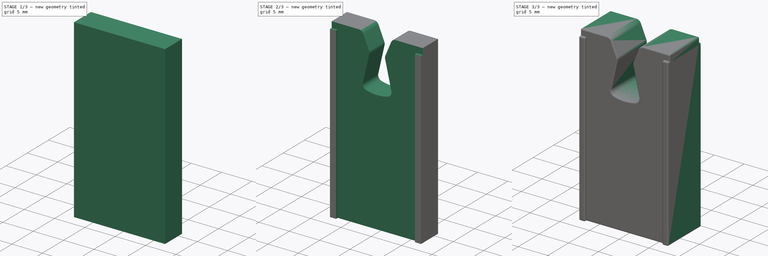
[diagram: build sequence overview — one tinted view per stage of 3, left to right]
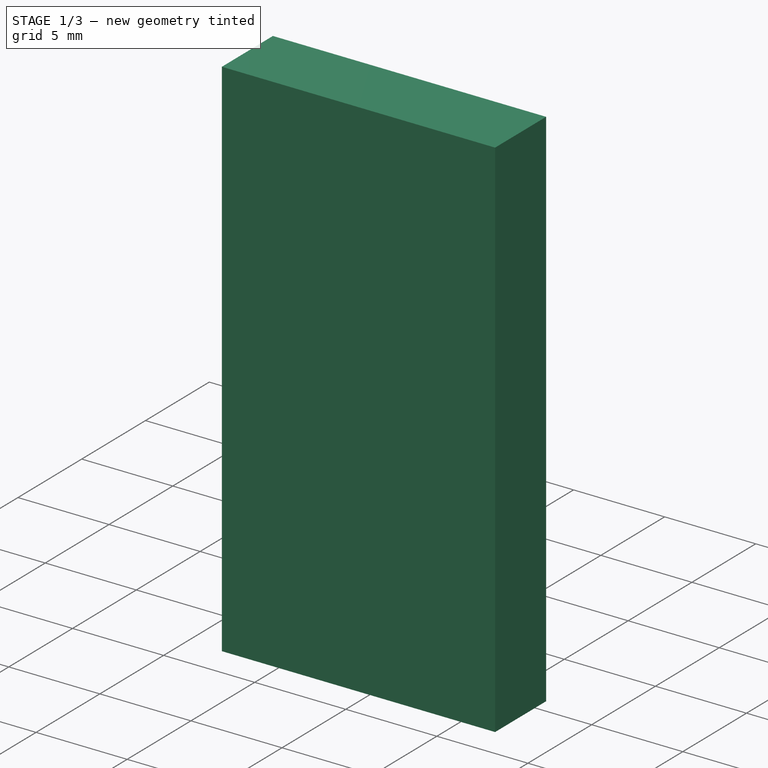
[diagram: stage 1 of 3 — iso view after this stage's code; geometry added in this stage tinted green]
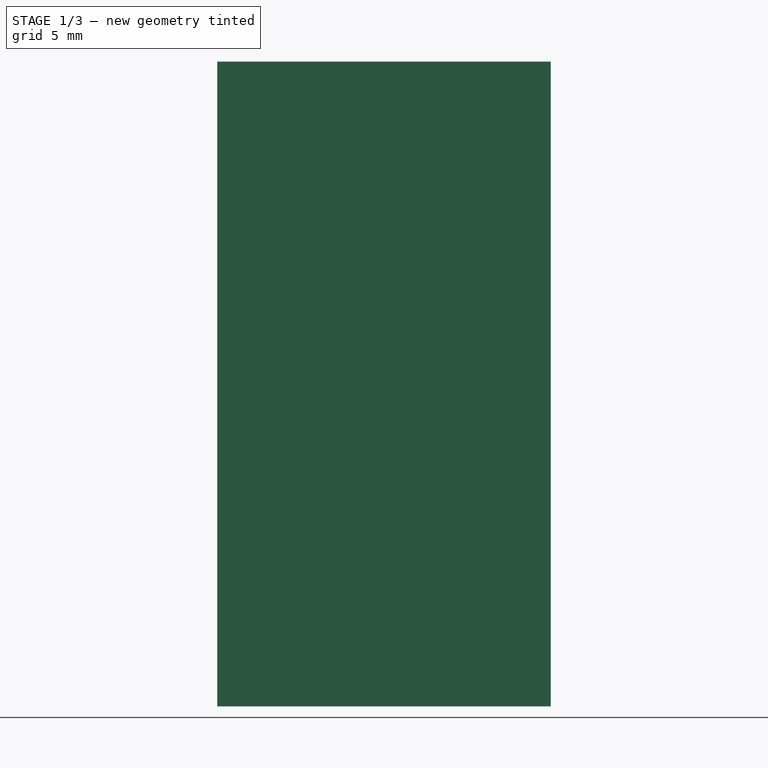
[diagram: stage 1 of 3 — front view after this stage's code; geometry added in this stage tinted green]
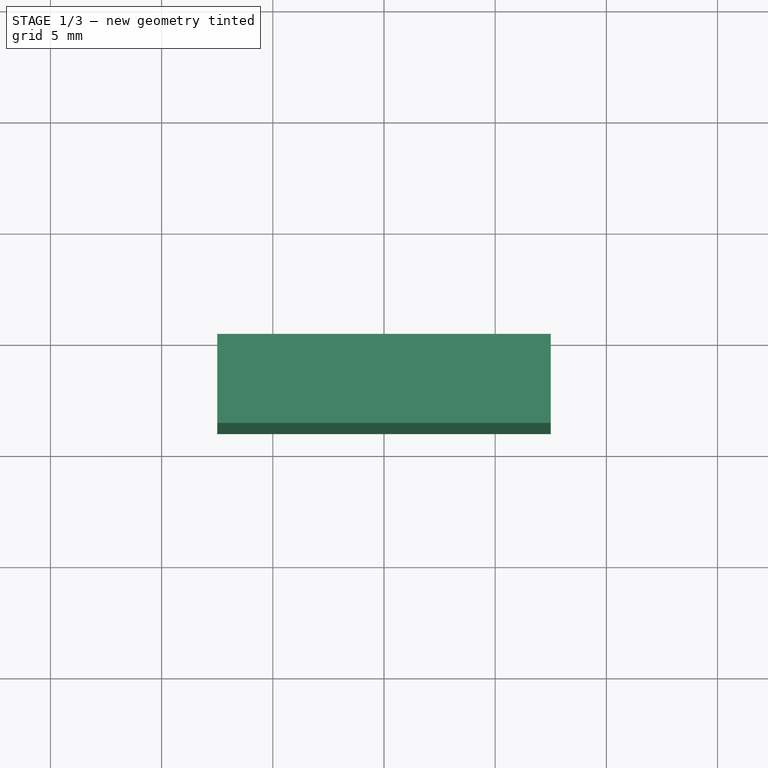
[diagram: stage 1 of 3 — top view after this stage's code; geometry added in this stage tinted green]
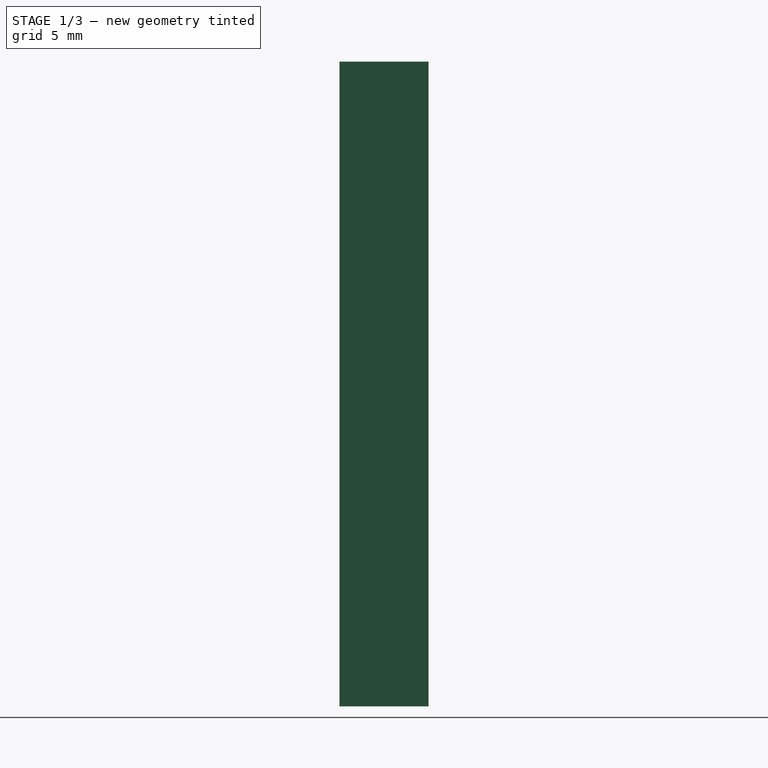
[diagram: stage 1 of 3 — right view after this stage's code; geometry added in this stage tinted green]
FCSTD DOCUMENT  (FreeCAD 1.0RUnknown)
Label: Marimba Part
License: All rights reserved
LicenseURL: https://en.wikipedia.org/wiki/All_rights_reserved
objects: Sketcher::SketchObject×4, PartDesign::Pocket×3, PartDesign::Fillet×2, PartDesign::Pad×1, PartDesign::Mirrored×1, PartDesign::Body×1
note: 29 computed .brp shape members not serialized (recipe doc carries the construction recipe); baked Part::Feature solids carry a one-line shape summary decoded from their .brp

FEATURE [Sketcher::SketchObject] Sketch
  ArcFitTolerance = 1e-06
  AttachmentSupport = -> [XZ_Plane]
  FullyConstrained = true
  MakeInternals = false
  MapMode = 5
  Placement = pos=(0,0,0) rot=(1,0,0;1.5708rad)
  sketch-geometry (6):
    g0: LineSegment StartX=-7.5 StartY=29 StartZ=0 EndX=-7.5 EndY=0 EndZ=0
    g1: LineSegment StartX=-7.5 StartY=0 StartZ=0 EndX=0 EndY=0 EndZ=0
    g2: LineSegment StartX=0 StartY=29 StartZ=0 EndX=-7.5 EndY=29 EndZ=0
    g3: LineSegment StartX=0 StartY=0 StartZ=0 EndX=7.5 EndY=0 EndZ=0
    g4: LineSegment StartX=7.5 StartY=0 StartZ=0 EndX=7.5 EndY=29 EndZ=0
    g5: LineSegment StartX=7.5 StartY=29 StartZ=0 EndX=0 EndY=29 EndZ=0
  constraints (17):
    c: Coincident(g0,g1)
    c: Coincident(g2,g0)
    c: Vertical(g0)
    c: Horizontal(g1)
    c: Horizontal(g2)
    c: Coincident(g3,g4)
    c: Coincident(g4,g5)
    c: Vertical(g4)
    c: Horizontal(g3)
    c: Horizontal(g5)
    c: Coincident(g2,g5)
    c: Coincident(g1,g3)
    c: PointOnObject(g2,g-2)
    c: DistanceY(g4,g4) = 29
    c: Equal(g1,g3)
    c: DistanceX(g3,g3) = 7.5
    c: Coincident(g1,g-1)
FEATURE [PartDesign::Pad] Pad
  Direction = (0,-1,2e-16)
  Length = 4
  Length2 = 10
  Placement = pos=(0,0,0) rot=(1,0,0;1.5708rad)
  Profile = -> Sketch
  ReferenceAxis = -> Sketch [N_Axis]
  Refine = true
  Suppressed = false
  Type = 0
FEATURE [Sketcher::SketchObject] Sketch001
  ArcFitTolerance = 1e-06
  AttachmentSupport = -> [Pad]
  ExternalGeometry = -> [Pad]
  FullyConstrained = true
  MakeInternals = false
  MapMode = 5
  Placement = pos=(0,0,0) rot=(1,0,0;3.14159rad)
  sketch-geometry (1):
    g0: Circle CenterX=0 CenterY=0 CenterZ=0 NormalX=0 NormalY=0 NormalZ=1 AngleXU=0 Radius=2.5
  constraints (2):
    c: Coincident(g0,g-1)
    c: Diameter(g0) = 5
FEATURE [PartDesign::Pocket] Pocket
  BaseFeature = -> Pad
  Direction = (0,0,1)
  Length = 19
  Length2 = 5
  Placement = pos=(0,0,0) rot=(1,0,0;1.5708rad)
  Profile = -> Sketch001
  ReferenceAxis = -> Sketch001 [N_Axis]
  Refine = true
  Suppressed = false
  Type = 0
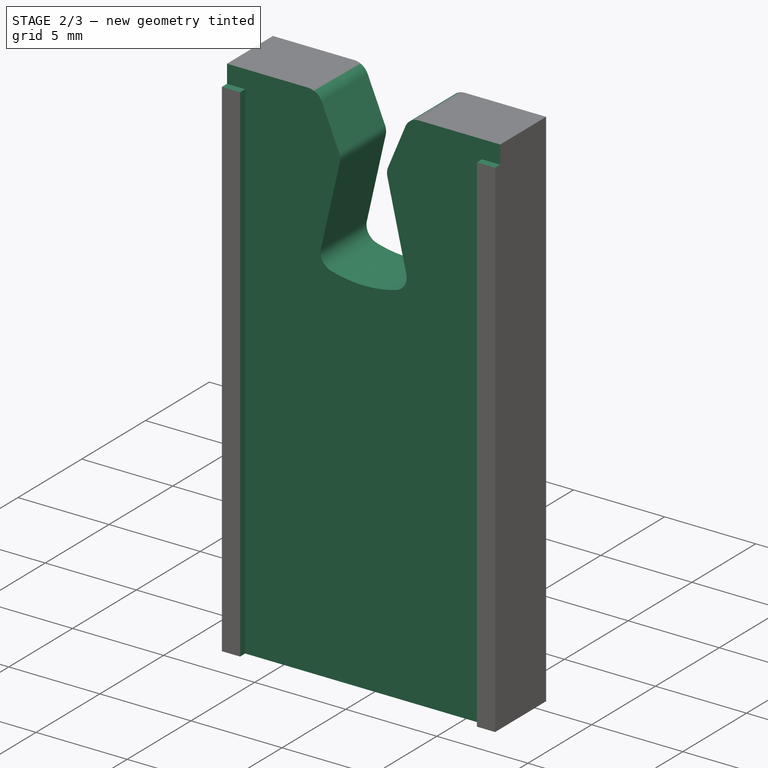
[diagram: stage 2 of 3 — iso view after this stage's code; geometry added in this stage tinted green]
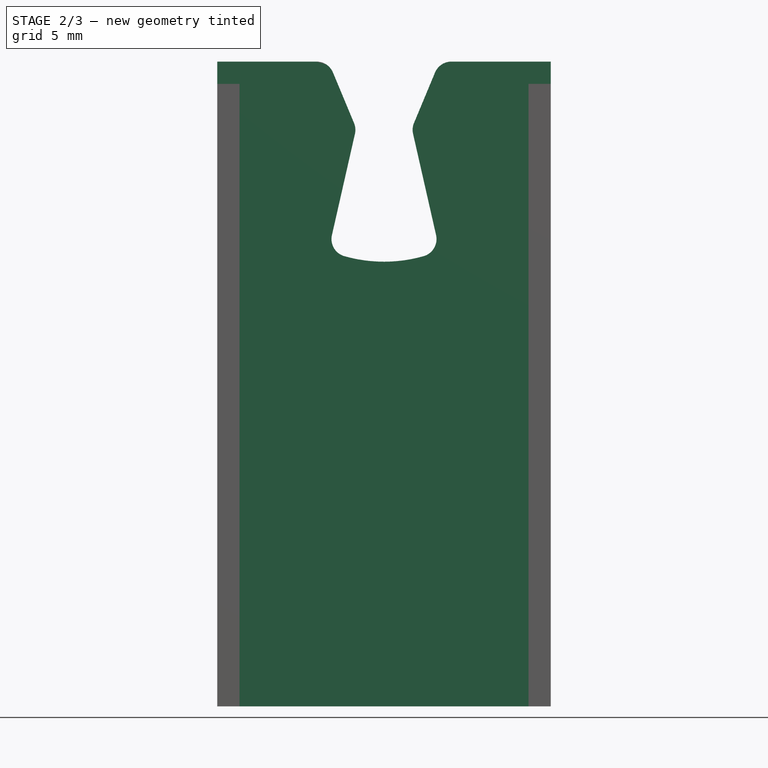
[diagram: stage 2 of 3 — front view after this stage's code; geometry added in this stage tinted green]
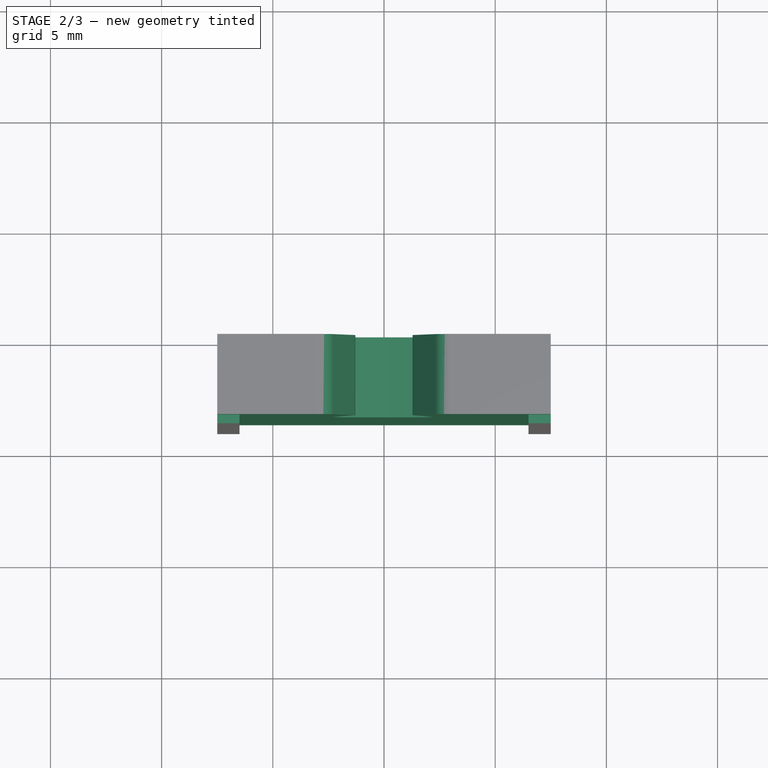
[diagram: stage 2 of 3 — top view after this stage's code; geometry added in this stage tinted green]
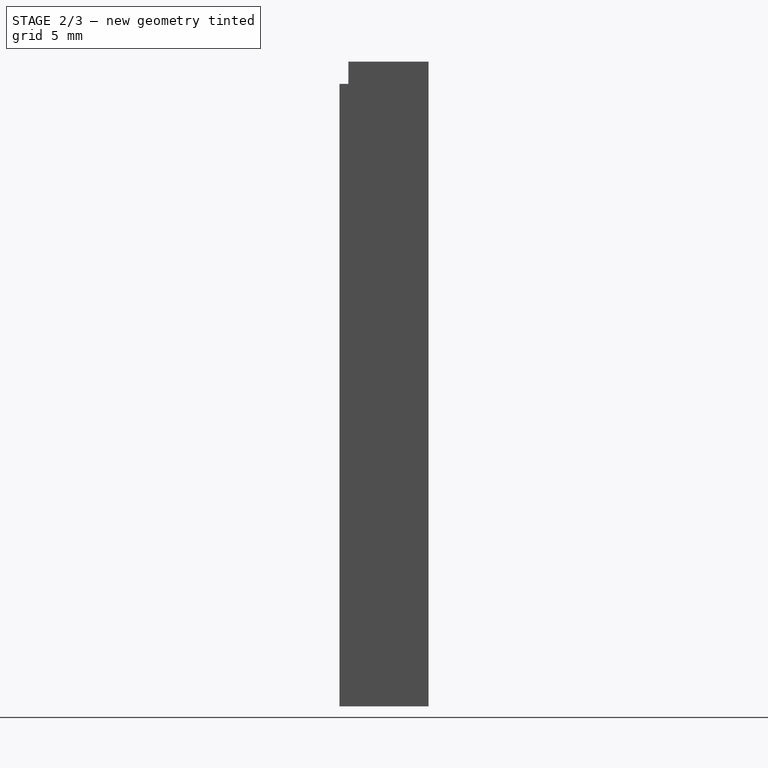
[diagram: stage 2 of 3 — right view after this stage's code; geometry added in this stage tinted green]
FEATURE [Sketcher::SketchObject] Sketch002
  ArcFitTolerance = 1e-06
  AttachmentSupport = -> [Pocket]
  ExternalGeometry = -> [Pocket]
  FullyConstrained = true
  MakeInternals = false
  MapMode = 5
  Placement = pos=(0,-4,9e-16) rot=(1,0,0;1.5708rad)
  sketch-geometry (18):
    g0: LineSegment [constr] StartX=-7.5 StartY=20 StartZ=0 EndX=-2.5 EndY=20 EndZ=0
    g1: LineSegment [constr] StartX=2.5 StartY=20 StartZ=0 EndX=7.5 EndY=20 EndZ=0
    g2: LineSegment [constr] StartX=-2.5 StartY=20 StartZ=0 EndX=9e-16 EndY=20 EndZ=0
    g3: LineSegment [constr] StartX=9e-16 StartY=20 StartZ=0 EndX=2.5 EndY=20 EndZ=0
    g4: LineSegment [constr] StartX=-2.5 StartY=20 StartZ=0 EndX=-2.5 EndY=29 EndZ=0
    g5: LineSegment [constr] StartX=2.5 StartY=20 StartZ=0 EndX=2.5 EndY=29 EndZ=0
    g6: LineSegment StartX=-2.5 StartY=20.5 StartZ=0 EndX=-1.25 EndY=26 EndZ=0
    g7: LineSegment StartX=2.5 StartY=20.5 StartZ=0 EndX=1.25 EndY=26 EndZ=0
    g8: LineSegment StartX=2.5 StartY=29 StartZ=0 EndX=1.25 EndY=26 EndZ=0
    g9: LineSegment [constr] StartX=-1.25 StartY=26 StartZ=0 EndX=0 EndY=26 EndZ=0
    g10: LineSegment [constr] StartX=0 StartY=26 StartZ=0 EndX=1.25 EndY=26 EndZ=0
    g11: LineSegment [constr] StartX=-1.25 StartY=26 StartZ=0 EndX=-2.5 EndY=26 EndZ=0
    g12: LineSegment [constr] StartX=-2.5 StartY=20.5 StartZ=0 EndX=0 EndY=20.5 EndZ=0
    g13: LineSegment [constr] StartX=2.5 StartY=20.5 StartZ=0 EndX=0 EndY=20.5 EndZ=0
    g14: ArcOfCircle CenterX=2e-15 CenterY=26.5 CenterZ=0 NormalX=0 NormalY=0 NormalZ=1 AngleXU=0 Radius=6.5 StartAngle=4.71239 EndAngle=5.10718
    g15: ArcOfCircle CenterX=2e-15 CenterY=26.5 CenterZ=0 NormalX=0 NormalY=0 NormalZ=1 AngleXU=0 Radius=6.5 StartAngle=4.3176 EndAngle=4.71239
    g16: LineSegment StartX=-1.25 StartY=26 StartZ=0 EndX=-2.5 EndY=29 EndZ=0
    g17: LineSegment StartX=-2.5 StartY=29 StartZ=0 EndX=2.5 EndY=29 EndZ=0
  constraints (51):
    c: PointOnObject(g0,g-3)
    c: PointOnObject(g1,g-4)
    c: Perpendicular(g-3,g0)
    c: Distance(g-5,g0) = 9
    c: Equal(g0,g1)
    c: DistanceX(g0,g0) = 5
    c: PointOnObject(g2,g-2)
    c: Coincident(g3,g2)
    c: Coincident(g3,g1)
    c: Parallel(g3,g2)
    c: Perpendicular(g2,g-2)
    c: Perpendicular(g-4,g1)
    c: PointOnObject(g4,g-5)
    c: Coincident(g5,g1)
    c: PointOnObject(g5,g-5)
    c: Perpendicular(g-5,g4)
    c: Perpendicular(g-5,g5)
    c: Coincident(g8,g7)
    c: Coincident(g9,g6)
    c: PointOnObject(g9,g-2)
    c: Coincident(g10,g9)
    c: Coincident(g10,g7)
    c: Equal(g9,g10)
    c: Perpendicular(g-2,g9)
    c: Parallel(g10,g9)
    c: Coincident(g11,g6)
    c: PointOnObject(g11,g4)
    c: Equal(g11,g9)
    c: Perpendicular(g4,g11)
    c: PointOnObject(g6,g4)
    c: Coincident(g4,g0)
    c: Coincident(g2,g0)
    c: PointOnObject(g7,g5)
    c: Coincident(g12,g6)
    c: PointOnObject(g12,g-2)
    c: Coincident(g13,g7)
    c: Coincident(g13,g12)
    c: Parallel(g13,g12)
    c: Perpendicular(g-2,g12)
    c: Coincident(g15,g14)
    c: Coincident(g15,g6)
    c: Coincident(g15,g14)
    c: Distance(g-5,g11) = 3
    c: Coincident(g16,g6)
    c: Coincident(g16,g4)
    c: Coincident(g14,g7)
    c: Coincident(g2,g14)
    c: Distance(g2,g12) = 0.5
    c: Coincident(g8,g5)
    c: Coincident(g17,g4)
    c: Coincident(g17,g5)
FEATURE [PartDesign::Pocket] Pocket001
  BaseFeature = -> Pocket
  Direction = (0,1,-2e-16)
  Length = 15
  Length2 = 5
  Placement = pos=(0,0,0) rot=(1,0,0;1.5708rad)
  Profile = -> Sketch002
  ReferenceAxis = -> Sketch002 [N_Axis]
  Refine = true
  Suppressed = false
  Type = 0
FEATURE [Sketcher::SketchObject] Sketch005
  ArcFitTolerance = 1e-06
  AttachmentSupport = -> [Pocket001]
  ExternalGeometry = -> [Pocket001]
  FullyConstrained = true
  MakeInternals = false
  MapMode = 5
  Placement = pos=(0,-4,9e-16) rot=(1,0,0;1.5708rad)
  sketch-geometry (13):
    g0: LineSegment StartX=-6.5 StartY=28 StartZ=0 EndX=-6.5 EndY=0 EndZ=0
    g1: LineSegment StartX=-6.5 StartY=0 StartZ=0 EndX=0 EndY=0 EndZ=0
    g2: LineSegment StartX=-7.5 StartY=28 StartZ=0 EndX=-6.5 EndY=28 EndZ=0
    g3: LineSegment [constr] StartX=-6.5 StartY=28 StartZ=0 EndX=-6.5 EndY=29 EndZ=0
    g4: LineSegment StartX=-7.5 StartY=28 StartZ=0 EndX=-7.5 EndY=29 EndZ=0
    g5: LineSegment StartX=-7.5 StartY=29 StartZ=0 EndX=-6.5 EndY=29 EndZ=0
    g6: LineSegment StartX=6.5 StartY=28 StartZ=0 EndX=6.5 EndY=0 EndZ=0
    g7: LineSegment StartX=6.5 StartY=0 StartZ=0 EndX=0 EndY=0 EndZ=0
    g8: LineSegment StartX=7.5 StartY=28 StartZ=0 EndX=6.5 EndY=28 EndZ=0
    g9: LineSegment [constr] StartX=6.5 StartY=28 StartZ=0 EndX=6.5 EndY=29 EndZ=0
    g10: LineSegment StartX=7.5 StartY=28 StartZ=0 EndX=7.5 EndY=29 EndZ=0
    g11: LineSegment StartX=7.5 StartY=29 StartZ=0 EndX=6.5 EndY=29 EndZ=0
    g12: LineSegment StartX=-6.5 StartY=29 StartZ=0 EndX=6.5 EndY=29 EndZ=0
  constraints (36):
    c: Coincident(g0,g1)
    c: Vertical(g0)
    c: Horizontal(g1)
    c: PointOnObject(g1,g-2)
    c: PointOnObject(g1,g-1)
    c: Coincident(g2,g0)
    c: Perpendicular(g0,g2)
    c: Coincident(g3,g0)
    c: Coincident(g4,g2)
    c: Coincident(g5,g4)
    c: Coincident(g5,g3)
    c: Horizontal(g5)
    c: DistanceY(g3,g3) = 1
    c: PointOnObject(g2,g-3)
    c: Coincident(g4,g-3)
    c: DistanceX(g2,g2) = 1
    c: Perpendicular(g5,g3)
    c: Coincident(g6,g7)
    c: Vertical(g6)
    c: Horizontal(g7)
    c: Coincident(g8,g6)
    c: Coincident(g9,g6)
    c: Coincident(g10,g8)
    c: Coincident(g11,g10)
    c: Coincident(g11,g9)
    c: Horizontal(g11)
    c: Perpendicular(g11,g9)
    c: Coincident(g12,g3)
    c: Coincident(g12,g9)
    c: Horizontal(g12)
    c: Perpendicular(g9,g8)
    c: Perpendicular(g11,g10)
    c: Equal(g8,g2)
    c: Equal(g10,g4)
    c: PointOnObject(g8,g-4)
    c: Coincident(g7,g1)
FEATURE [PartDesign::Pocket] Pocket002
  BaseFeature = -> Pocket001
  Direction = (0,1,-2e-16)
  Length = 0.4
  Length2 = 5
  Placement = pos=(0,0,0) rot=(1,0,0;1.5708rad)
  Profile = -> Sketch005
  ReferenceAxis = -> Sketch005 [N_Axis]
  Refine = true
  Suppressed = false
  Type = 0
FEATURE [PartDesign::Fillet] Fillet
  Base = -> Pocket002 [Edge50,Edge49,Edge48,Edge47,Edge51,Edge42]
  BaseFeature = -> Pocket002
  Placement = pos=(0,0,0) rot=(1,0,0;1.5708rad)
  Radius = 0.8
  Refine = true
  SupportTransform = false
  Suppressed = false
  UseAllEdges = false
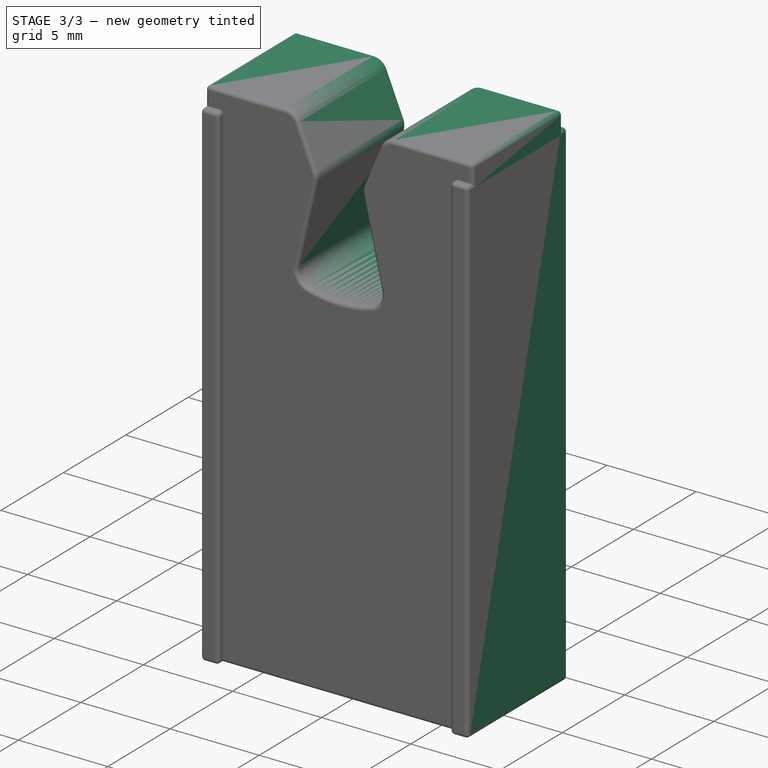
[diagram: stage 3 of 3 — iso view after this stage's code; geometry added in this stage tinted green]
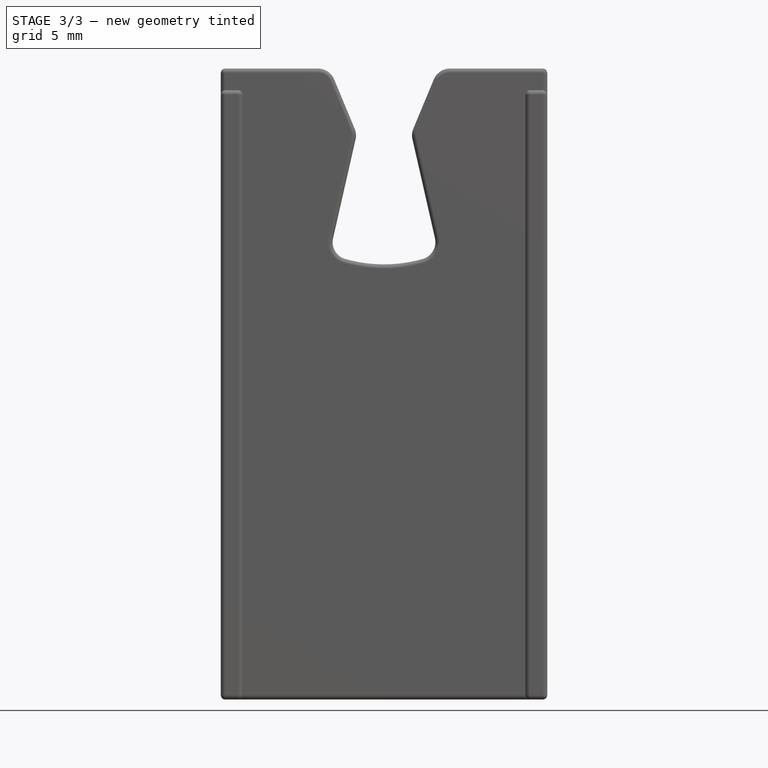
[diagram: stage 3 of 3 — front view after this stage's code; geometry added in this stage tinted green]
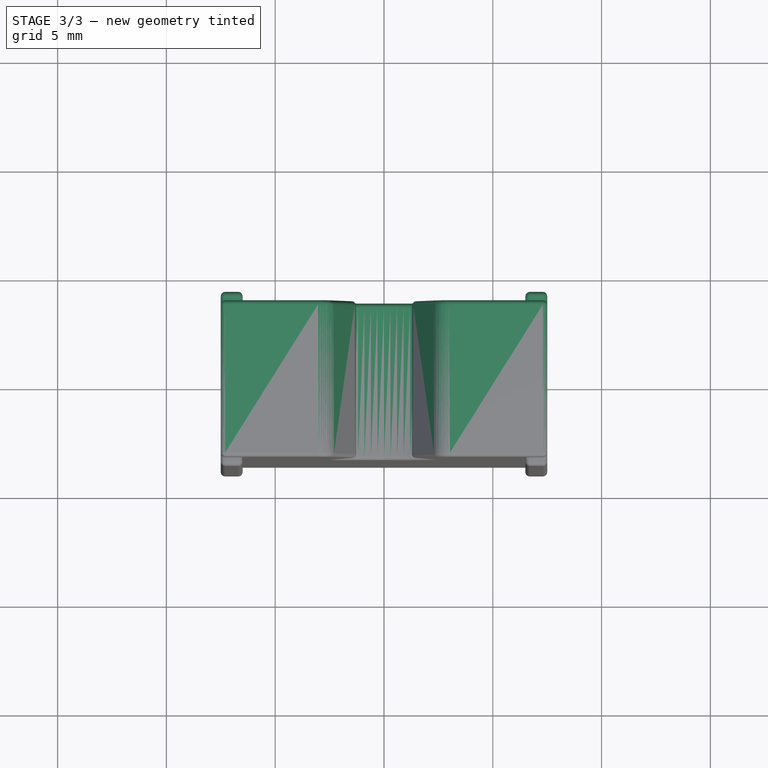
[diagram: stage 3 of 3 — top view after this stage's code; geometry added in this stage tinted green]
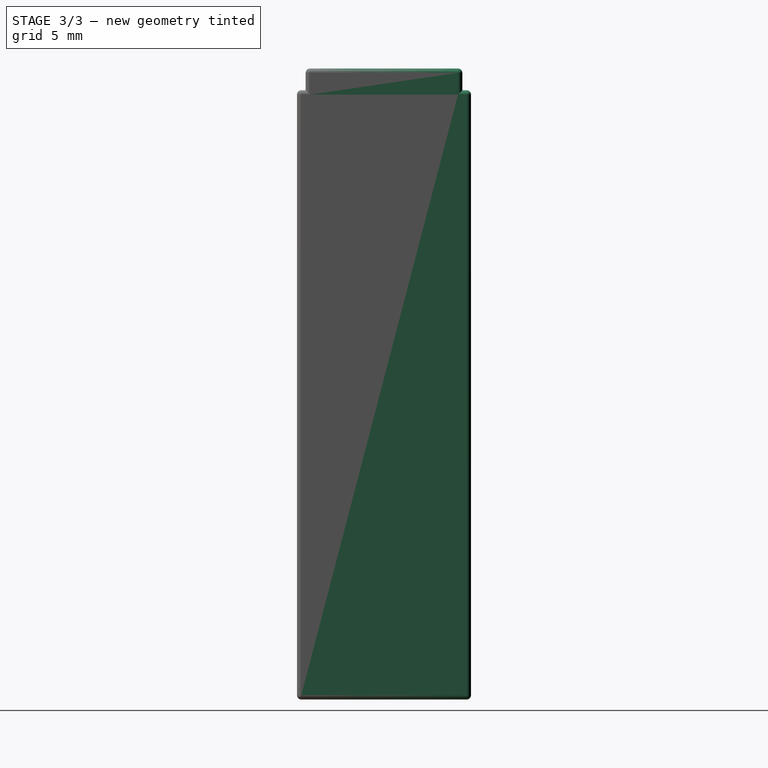
[diagram: stage 3 of 3 — right view after this stage's code; geometry added in this stage tinted green]
FEATURE [PartDesign::Fillet] Fillet001
  Base = -> Fillet [Edge35,Edge38,Edge32,Edge33,Edge29,Edge37,Edge36,Edge34,Edge70,Edge50,Edge69,Edge28,Edge51,Edge71,Edge72,Edge56,Edge52,Edge46,Edge44,Edge42,Edge48,Edge54,Edge62,Edge60,Edge58,Edge39,Edge30,Edge24,Edge21,Edge27,Edge26,Edge68,Edge67,Edge53,Edge23]
  BaseFeature = -> Fillet
  Placement = pos=(0,0,0) rot=(1,0,0;1.5708rad)
  Radius = 0.2
  Refine = true
  SupportTransform = false
  Suppressed = false
  UseAllEdges = false
FEATURE [PartDesign::Mirrored] Mirrored
  BaseFeature = -> Fillet001
  MirrorPlane = -> XZ_Plane
  Placement = pos=(0,0,0) rot=(1,0,0;1.5708rad)
  Refine = true
  Suppressed = false
  TransformMode = 1
FEATURE [PartDesign::Body] Body
  AllowCompound = false
  Group = -> [Sketch,Pad,Sketch001,Pocket,Sketch002,Pocket001,Sketch005,Pocket002,Fillet,Fillet001,Mirrored]
  Origin = -> Origin
  Tip = -> Mirrored
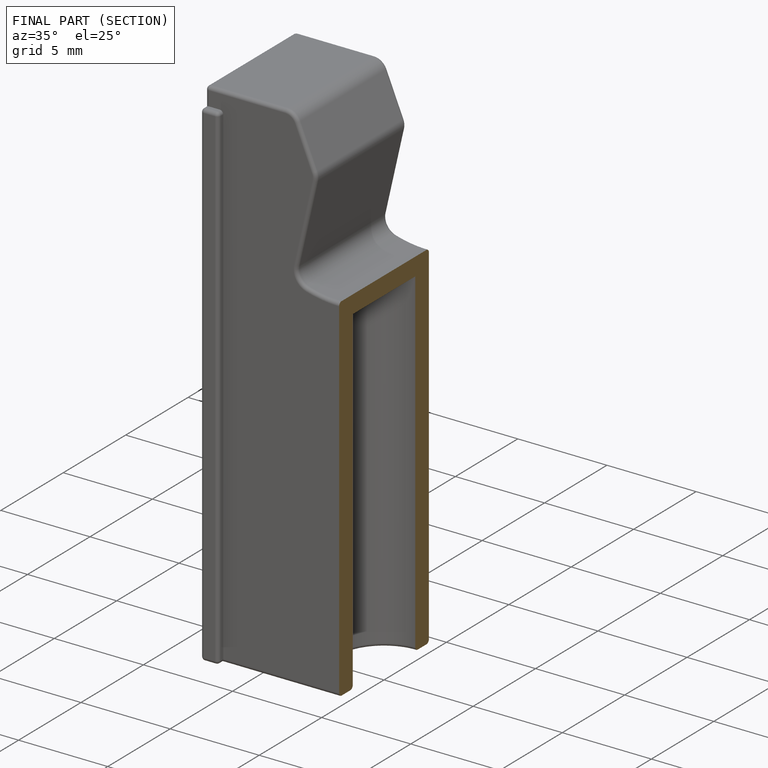
[diagram: finished part — half-section view (interior)]
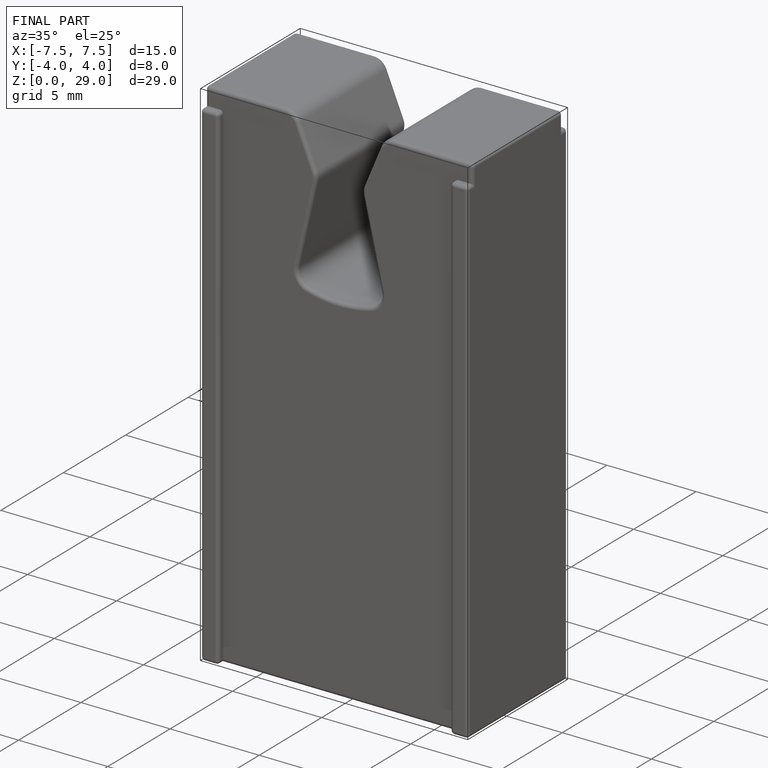
[diagram: finished part — iso view with bounding-box wireframe]
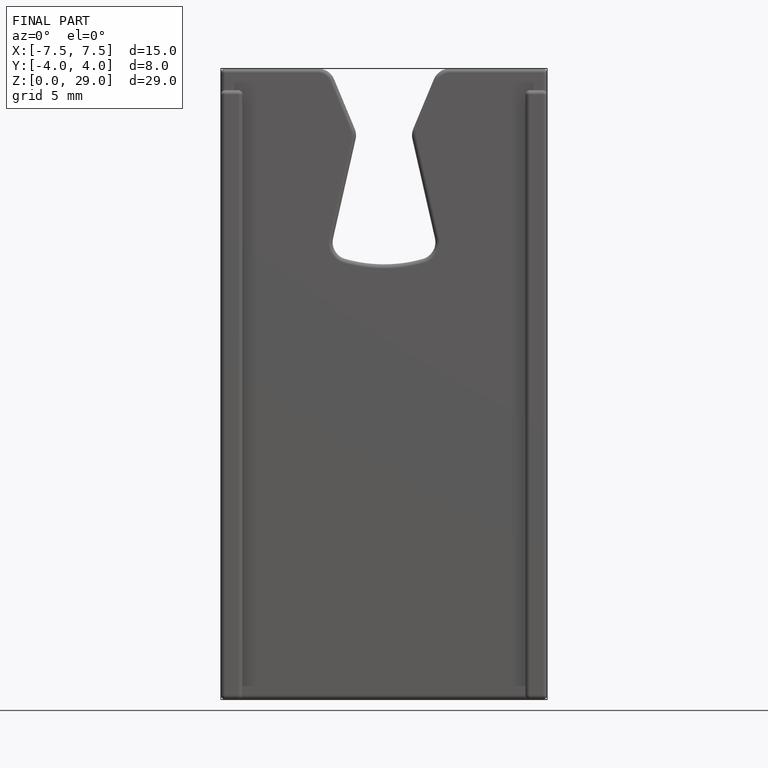
[diagram: finished part — front view with bounding-box wireframe]
